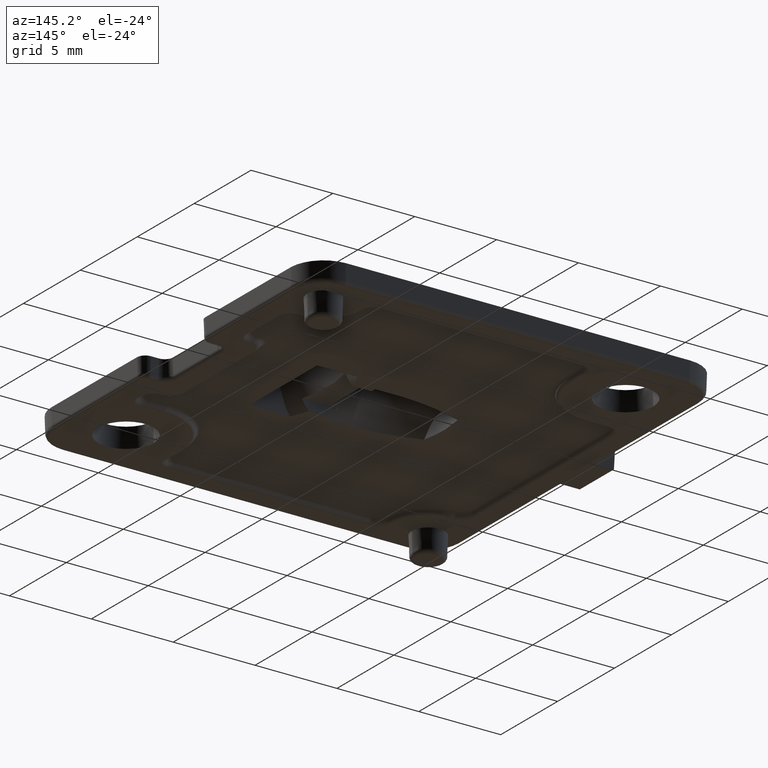
[diagram: clean part render]
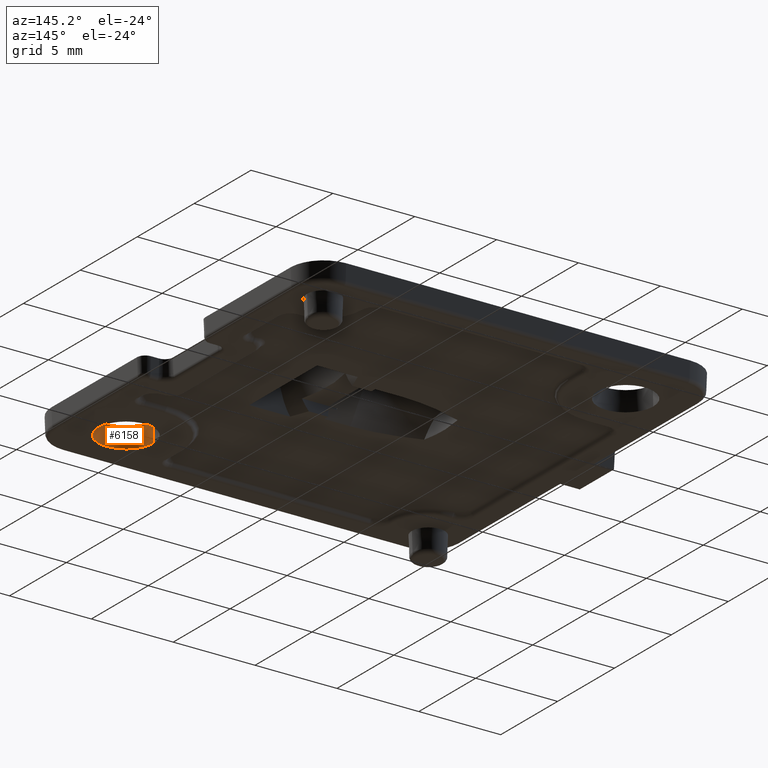
[diagram: same view with one face highlighted and labeled with its STEP entity id]
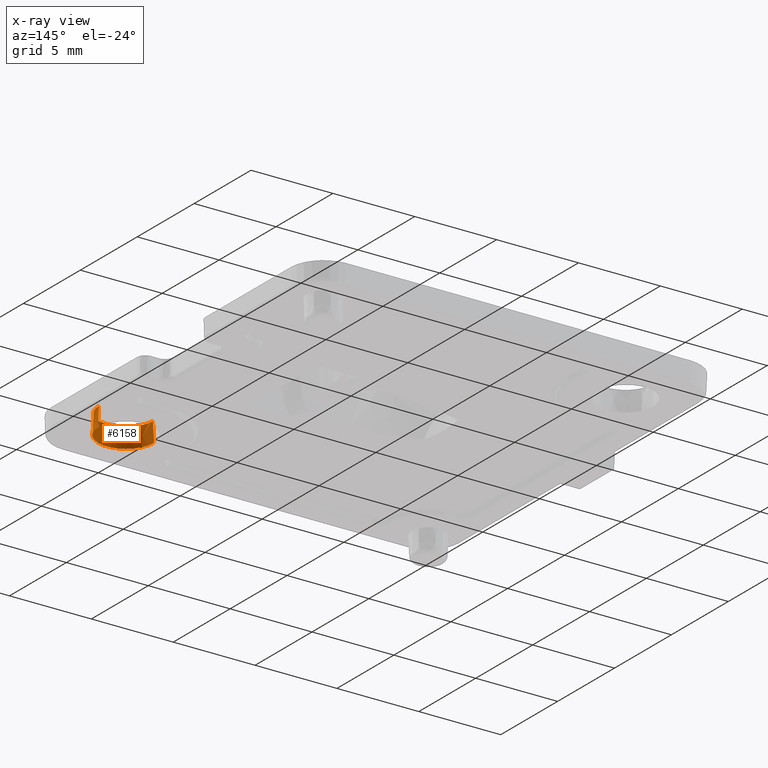
[diagram: x-ray of the same camera — body ghosted, the highlighted face saturated]
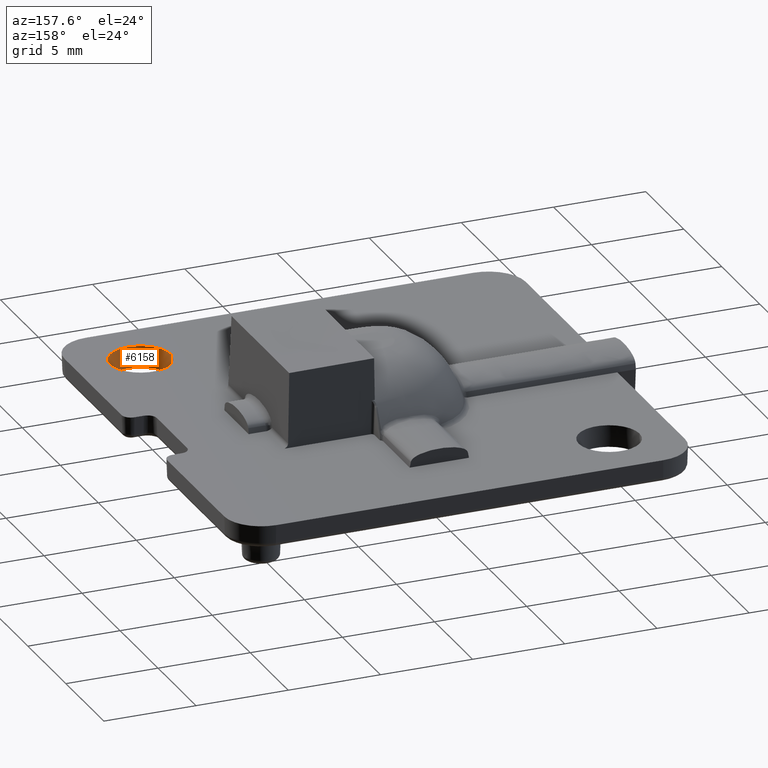
[diagram: same view with one face highlighted and labeled with its STEP entity id]
A machine part, auxiliary view. The second image highlights one B-rep face of the part: STEP entity #6158.
The next image is the same camera in x-ray: the body ghosted, the highlighted face saturated — about 0% of this face is hidden behind the body in this view.
A second angle (auxiliary view) of the same face is appended — the face is thin or edge-on in the first view.
In plain terms, the highlighted conical surface has half-angle 2 deg.
Its self-contained STEP definition (entity closure, byte-faithful):
#15 = ORIENTED_EDGE ( 'NONE', *, *, #5011, .F. ) ;
#16 = DIRECTION ( 'NONE',  ( -1.000000000000000000, 0.0000000000000000000, 0.0000000000000000000 ) ) ;
#195 = VECTOR ( 'NONE', #1083, 1000.000000000000100 ) ;
#257 = DIRECTION ( 'NONE',  ( -0.03489949670250104600, 0.0000000000000000000, -0.9993908270190956500 ) ) ;
#563 = DIRECTION ( 'NONE',  ( 1.000000000000000000, 0.0000000000000000000, 0.0000000000000000000 ) ) ;
#775 = CIRCLE ( 'NONE', #5330, 1.691904923390098000 ) ;
#998 = CARTESIAN_POINT ( 'NONE',  ( 10.65000000000000200, -9.000000000000000000, 1.700000000000000000 ) ) ;
#1083 = DIRECTION ( 'NONE',  ( 0.03489949670250104600, 4.273955692857151000E-018, -0.9993908270190956500 ) ) ;
#1275 = EDGE_CURVE ( 'NONE', #2143, #1443, #2860, .T. ) ;
#1356 = LINE ( 'NONE', #6499, #6323 ) ;
#1443 = VERTEX_POINT ( 'NONE', #4047 ) ;
#1587 = FACE_OUTER_BOUND ( 'NONE', #2211, .T. ) ;
#1766 = ORIENTED_EDGE ( 'NONE', *, *, #4880, .F. ) ;
#1843 = CARTESIAN_POINT ( 'NONE',  ( 7.350000000000000500, -9.000000000000000000, 1.700000000000000200 ) ) ;
#2143 = VERTEX_POINT ( 'NONE', #1843 ) ;
#2211 = EDGE_LOOP ( 'NONE', ( #4177, #5636, #15, #1766 ) ) ;
#2598 = CARTESIAN_POINT ( 'NONE',  ( 9.000000000000001800, -9.000000000000000000, 1.700000000000000200 ) ) ;
#2860 = CIRCLE ( 'NONE', #6220, 1.650000000000000400 ) ;
#3061 = CONICAL_SURFACE ( 'NONE', #7601, 1.650000000000000400, 0.03490658503988666700 ) ;
#3084 = VERTEX_POINT ( 'NONE', #4293 ) ;
#3226 = DIRECTION ( 'NONE',  ( 1.000000000000000000, 0.0000000000000000000, 0.0000000000000000000 ) ) ;
#4047 = CARTESIAN_POINT ( 'NONE',  ( 10.65000000000000200, -9.000000000000000000, 1.700000000000000200 ) ) ;
#4177 = ORIENTED_EDGE ( 'NONE', *, *, #1275, .T. ) ;
#4293 = CARTESIAN_POINT ( 'NONE',  ( 10.69190492339010000, -9.000000000000000000, 0.5000000000000000000 ) ) ;
#4344 = DIRECTION ( 'NONE',  ( 0.0000000000000000000, 0.0000000000000000000, 1.000000000000000000 ) ) ;
#4454 = DIRECTION ( 'NONE',  ( -0.0000000000000000000, -0.0000000000000000000, -1.000000000000000000 ) ) ;
#4880 = EDGE_CURVE ( 'NONE', #2143, #6241, #1356, .T. ) ;
#5011 = EDGE_CURVE ( 'NONE', #6241, #3084, #775, .T. ) ;
#5019 = CARTESIAN_POINT ( 'NONE',  ( 9.000000000000001800, -9.000000000000000000, 1.700000000000000000 ) ) ;
#5330 = AXIS2_PLACEMENT_3D ( 'NONE', #8013, #4344, #563 ) ;
#5636 = ORIENTED_EDGE ( 'NONE', *, *, #7306, .T. ) ;
#5750 = CARTESIAN_POINT ( 'NONE',  ( 7.308095076609903100, -9.000000000000000000, 0.5000000000000000000 ) ) ;
#6158 = ADVANCED_FACE ( 'NONE', ( #1587 ), #3061, .F. ) ;
#6220 = AXIS2_PLACEMENT_3D ( 'NONE', #2598, #6915, #3226 ) ;
#6241 = VERTEX_POINT ( 'NONE', #5750 ) ;
#6323 = VECTOR ( 'NONE', #257, 1000.000000000000100 ) ;
#6499 = CARTESIAN_POINT ( 'NONE',  ( 7.350000000000000500, -9.000000000000000000, 1.700000000000000000 ) ) ;
#6621 = LINE ( 'NONE', #998, #195 ) ;
#6915 = DIRECTION ( 'NONE',  ( 0.0000000000000000000, 0.0000000000000000000, 1.000000000000000000 ) ) ;
#7306 = EDGE_CURVE ( 'NONE', #1443, #3084, #6621, .T. ) ;
#7601 = AXIS2_PLACEMENT_3D ( 'NONE', #5019, #4454, #16 ) ;
#8013 = CARTESIAN_POINT ( 'NONE',  ( 9.000000000000001800, -9.000000000000000000, 0.5000000000000000000 ) ) ;